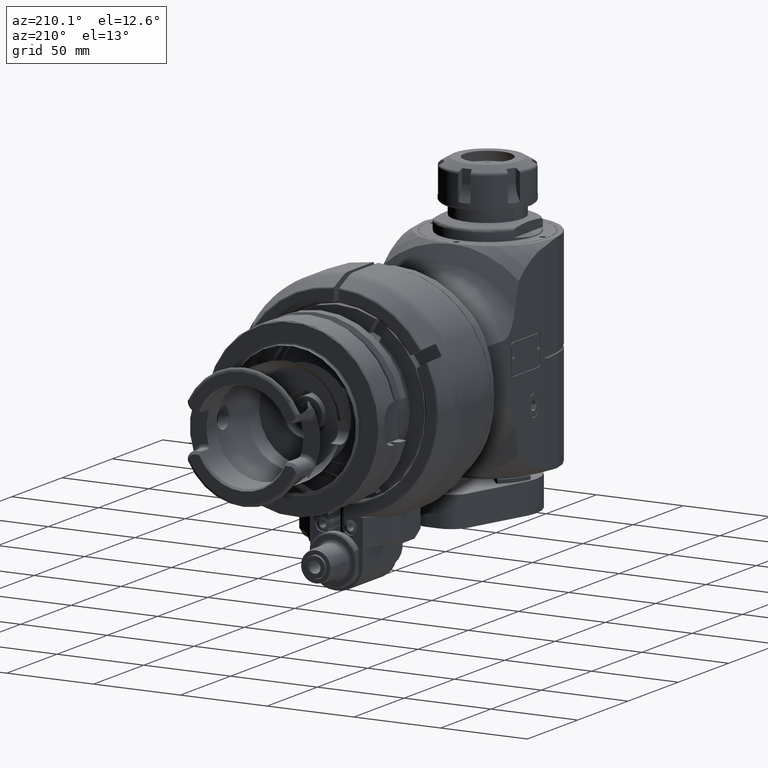
[diagram: clean part render]
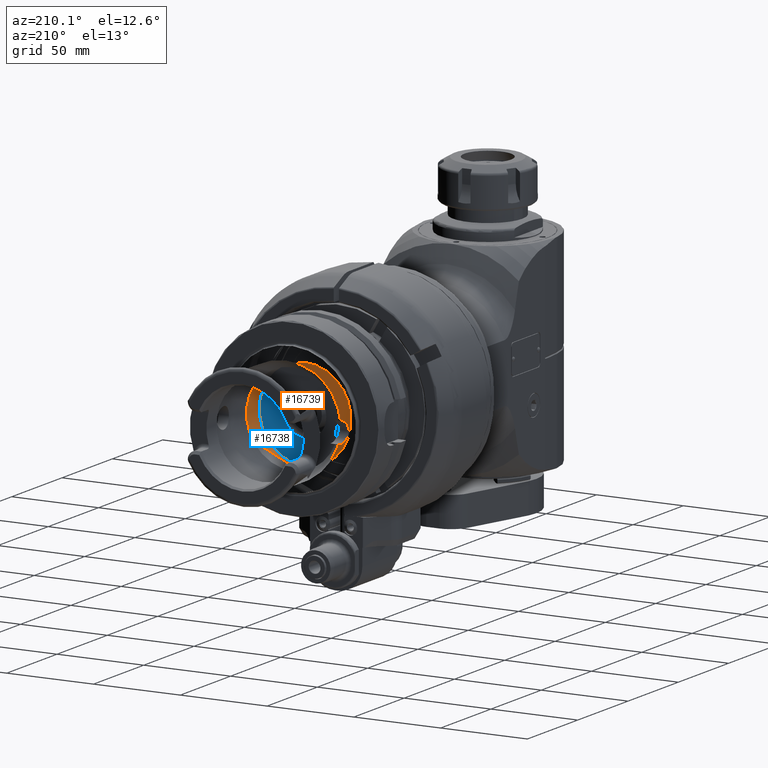
[diagram: same view with the hole feature highlighted: cylindrical wall and planar end face, labeled with their STEP entity ids]
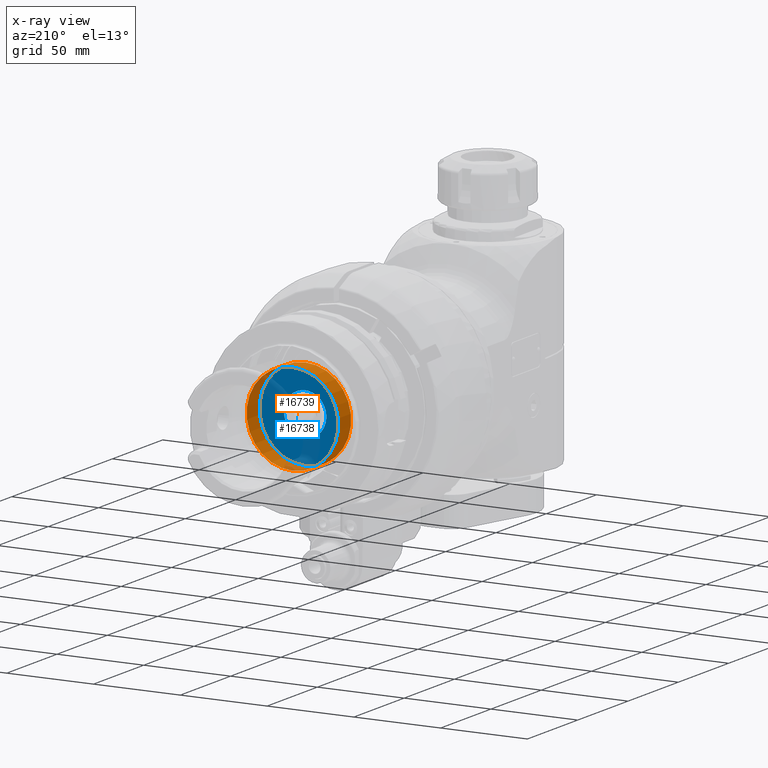
[diagram: x-ray of the same camera — body ghosted, the hole faces saturated]
A machine part, auxiliary view. The highlighted faces form one hole feature of diameter 53 mm: the cylindrical wall (entity #16739, orange) and its adjacent planar end face (entity #16738, blue) — they share a circular edge in the B-rep.
The next image is the same camera in x-ray (body ghosted, the hole faces saturated) — the bore reads through the body.
Wall:
#2047=LINE('',#31494,#3228);
#3228=VECTOR('',#22708,26.5);
#4103=CIRCLE('',#18444,26.5);
#4104=CIRCLE('',#18446,26.5);
#4105=CIRCLE('',#18447,26.5);
#4998=FACE_OUTER_BOUND('',#6053,.T.);
#6053=EDGE_LOOP('',(#14819,#14820,#14821,#14822,#14823));
#7951=VERTEX_POINT('',#31490);
#7952=VERTEX_POINT('',#31493);
#7953=VERTEX_POINT('',#31495);
#10289=EDGE_CURVE('',#7951,#7951,#4103,.T.);
#10290=EDGE_CURVE('',#7951,#7952,#2047,.T.);
#10291=EDGE_CURVE('',#7953,#7952,#4104,.T.);
#10292=EDGE_CURVE('',#7952,#7953,#4105,.T.);
#14819=ORIENTED_EDGE('',*,*,#10289,.F.);
#14820=ORIENTED_EDGE('',*,*,#10290,.T.);
#14821=ORIENTED_EDGE('',*,*,#10291,.F.);
#14822=ORIENTED_EDGE('',*,*,#10292,.F.);
#14823=ORIENTED_EDGE('',*,*,#10290,.F.);
#15947=CYLINDRICAL_SURFACE('',#18445,26.5);
#16739=ADVANCED_FACE('',(#4998),#15947,.F.);
#18444=AXIS2_PLACEMENT_3D('',#31491,#22704,#22705);
#18445=AXIS2_PLACEMENT_3D('',#31492,#22706,#22707);
#18446=AXIS2_PLACEMENT_3D('',#31496,#22709,#22710);
#18447=AXIS2_PLACEMENT_3D('',#31497,#22711,#22712);
#22704=DIRECTION('center_axis',(0.,1.,3.552713678797E-13));
#22705=DIRECTION('ref_axis',(0.,-3.552713678797E-13,1.));
#22706=DIRECTION('center_axis',(0.,1.,3.552713678797E-13));
#22707=DIRECTION('ref_axis',(0.,3.552713678797E-13,-1.));
#22708=DIRECTION('',(0.,1.,3.552713678797E-13));
#22709=DIRECTION('center_axis',(0.,-1.,-3.552713678797E-13));
#22710=DIRECTION('ref_axis',(0.,3.552713678797E-13,-1.));
#22711=DIRECTION('center_axis',(0.,-1.,-3.552713678797E-13));
#22712=DIRECTION('ref_axis',(0.,3.552713678797E-13,-1.));
#31490=CARTESIAN_POINT('',(3.24531401774049E-15,73.4999997692306,26.5000000000123));
#31491=CARTESIAN_POINT('Origin',(0.,73.49999976924,1.233637401975E-11));
#31492=CARTESIAN_POINT('Origin',(0.,104.7499997692,2.343860426599E-11));
#31493=CARTESIAN_POINT('',(3.24531401774049E-15,85.9999997692206,26.5000000000168));
#31494=CARTESIAN_POINT('',(3.24531401774049E-15,104.749999769191,26.5000000000234));
#31495=CARTESIAN_POINT('',(0.,85.99999976924,-26.49999999998));
#31496=CARTESIAN_POINT('Origin',(0.,85.99999976923,1.677726611824E-11));
#31497=CARTESIAN_POINT('Origin',(0.,85.99999976923,1.677726611824E-11));
End face:
#436=FACE_BOUND('',#6052,.T.);
#775=PLANE('',#18443);
#4102=CIRCLE('',#18442,12.25);
#4103=CIRCLE('',#18444,26.5);
#4997=FACE_OUTER_BOUND('',#6051,.T.);
#6051=EDGE_LOOP('',(#14817));
#6052=EDGE_LOOP('',(#14818));
#7950=VERTEX_POINT('',#31486);
#7951=VERTEX_POINT('',#31490);
#10288=EDGE_CURVE('',#7950,#7950,#4102,.T.);
#10289=EDGE_CURVE('',#7951,#7951,#4103,.T.);
#14817=ORIENTED_EDGE('',*,*,#10289,.T.);
#14818=ORIENTED_EDGE('',*,*,#10288,.T.);
#16738=ADVANCED_FACE('',(#4997,#436),#775,.F.);
#18442=AXIS2_PLACEMENT_3D('',#31488,#22700,#22701);
#18443=AXIS2_PLACEMENT_3D('',#31489,#22702,#22703);
#18444=AXIS2_PLACEMENT_3D('',#31491,#22704,#22705);
#22700=DIRECTION('center_axis',(0.,-1.,-3.552713678797E-13));
#22701=DIRECTION('ref_axis',(1.,0.,0.));
#22702=DIRECTION('center_axis',(0.,-1.,-3.552713678797E-13));
#22703=DIRECTION('ref_axis',(0.,3.552713678797E-13,-1.));
#22704=DIRECTION('center_axis',(0.,1.,3.552713678797E-13));
#22705=DIRECTION('ref_axis',(0.,-3.552713678797E-13,1.));
#31486=CARTESIAN_POINT('',(-12.25,73.49999976924,1.23378742120761E-11));
#31488=CARTESIAN_POINT('Origin',(0.,73.49999976924,1.233637401975E-11));
#31489=CARTESIAN_POINT('Origin',(0.,73.49999976923,13.25000000001));
#31490=CARTESIAN_POINT('',(3.24531401774049E-15,73.4999997692306,26.5000000000123));
#31491=CARTESIAN_POINT('Origin',(0.,73.49999976924,1.233637401975E-11));